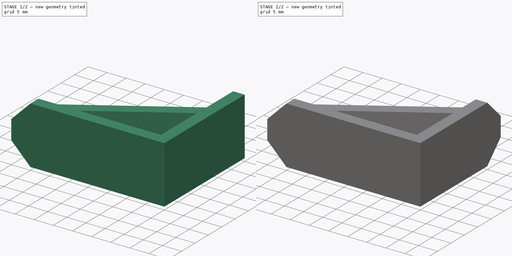
[diagram: build sequence overview — one tinted view per stage of 2, left to right]
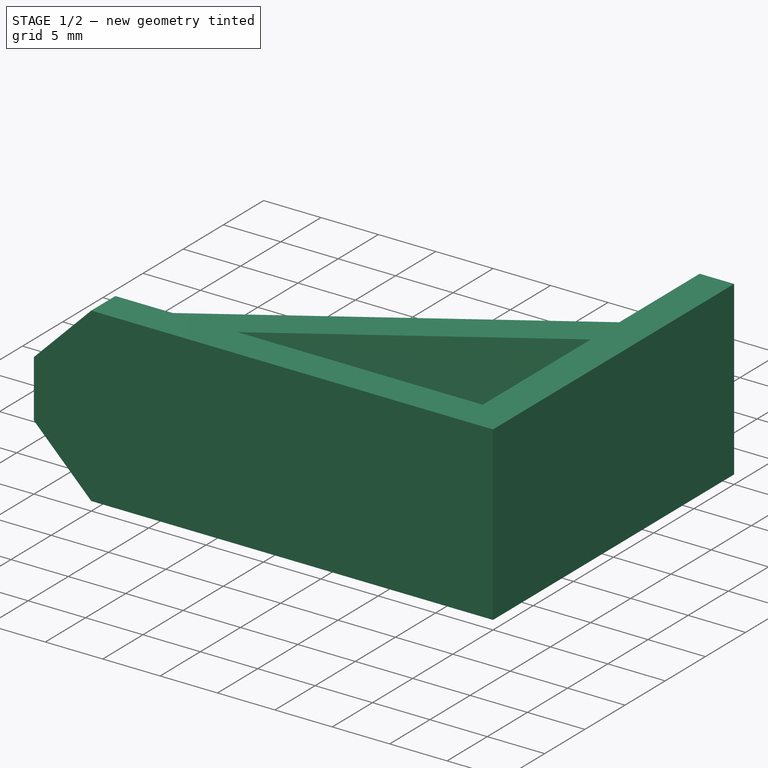
[diagram: stage 1 of 2 — iso view after this stage's code; geometry added in this stage tinted green]
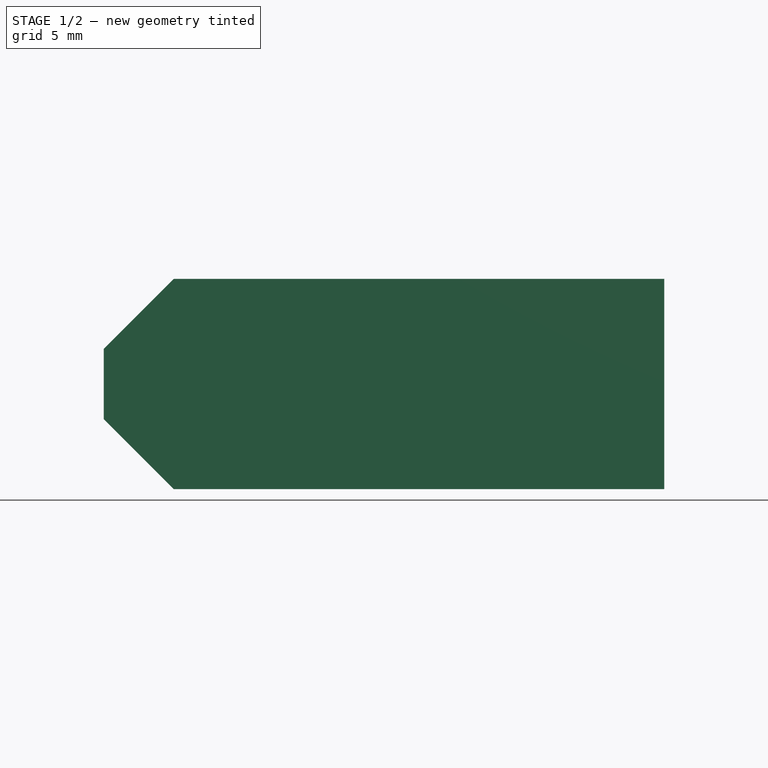
[diagram: stage 1 of 2 — front view after this stage's code; geometry added in this stage tinted green]
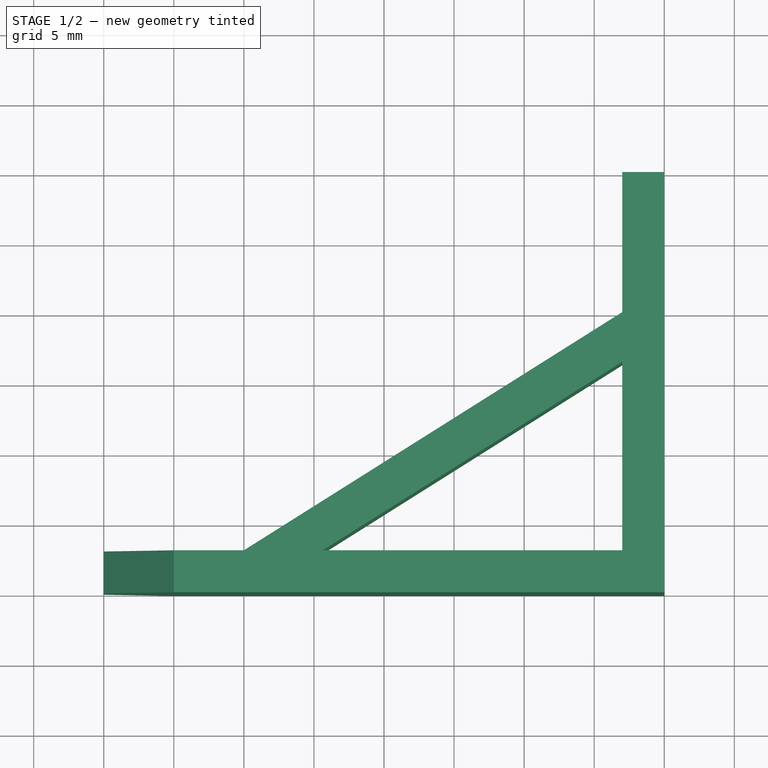
[diagram: stage 1 of 2 — top view after this stage's code; geometry added in this stage tinted green]
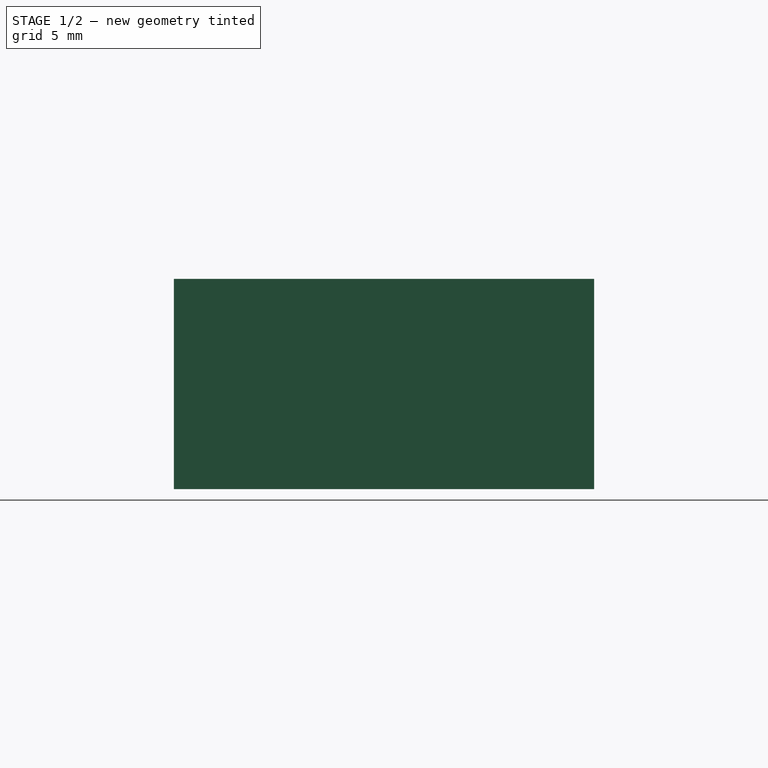
[diagram: stage 1 of 2 — right view after this stage's code; geometry added in this stage tinted green]
FCSTD DOCUMENT  (FreeCAD 0.21R33694 (Git))
Label: speaker foot
License: All rights reserved
LicenseURL: http://en.wikipedia.org/wiki/All_rights_reserved
objects: PartDesign::Chamfer×2, PartDesign::Body×2, Sketcher::SketchObject×1, PartDesign::Pad×1
note: 9 computed .brp shape members not serialized (recipe doc carries the construction recipe); baked Part::Feature solids carry a one-line shape summary decoded from their .brp

FEATURE [Sketcher::SketchObject] Sketch
  FullyConstrained = false
  MapMode = 5
  Support = -> [XY_Plane]
  sketch-geometry (13):
    g0: LineSegment StartX=0 StartY=0 StartZ=0 EndX=-40 EndY=0 EndZ=0
    g1: LineSegment StartX=-40 StartY=0 StartZ=0 EndX=-40 EndY=3 EndZ=0
    g2: LineSegment StartX=-3 StartY=30 StartZ=0 EndX=0 EndY=30 EndZ=0
    g3: LineSegment StartX=0 StartY=30 StartZ=0 EndX=0 EndY=0 EndZ=0
    g4: LineSegment StartX=-40 StartY=3 StartZ=0 EndX=-30 EndY=3 EndZ=0
    g5: LineSegment StartX=-30 StartY=3 StartZ=0 EndX=-3 EndY=20 EndZ=0
    g6: LineSegment StartX=-3 StartY=20 StartZ=0 EndX=-3 EndY=30 EndZ=0
    g7: LineSegment StartX=-3 StartY=3 StartZ=0 EndX=-24.3695 EndY=3 EndZ=0
    g8: LineSegment StartX=-24.3695 StartY=3 StartZ=0 EndX=-3 EndY=16.4549 EndZ=0
    g9: LineSegment StartX=-3 StartY=16.4549 StartZ=0 EndX=-3 EndY=3 EndZ=0
    g10: GeomPoint X=-19.365 Y=6.15096 Z=0
    g11: GeomPoint X=-20.9635 Y=8.68966 Z=0
    g12: LineSegment StartX=-19.365 StartY=6.15096 StartZ=0 EndX=-20.9635 EndY=8.68966 EndZ=0
  constraints (34):
    c: Coincident(g0,g-1)
    c: Coincident(g0,g1)
    c: Vertical(g1)
    c: PointOnObject(g2,g-2)
    c: Horizontal(g2)
    c: Coincident(g2,g3)
    c: Coincident(g3,g0)
    c: Horizontal(g0)
    c: Equal(g1,g2)
    c: DistanceX(g0,g0) = 40
    c: DistanceY(g1,g1) = 3
    c: DistanceY(g3,g3) = 30
    c: Coincident(g1,g4)
    c: Horizontal(g4)
    c: Coincident(g4,g5)
    c: Coincident(g5,g6)
    c: Coincident(g6,g2)
    c: Vertical(g6)
    c: Horizontal(g7)
    c: Coincident(g7,g8)
    c: Coincident(g8,g9)
    c: Coincident(g9,g7)
    c: Vertical(g9)
    c: Vertical(g5,g8)
    c: Horizontal(g4,g7)
    c: Parallel(g5,g8)
    c: Equal(g4,g6)
    c: PointOnObject(g10,g8)
    c: PointOnObject(g11,g5)
    c: Coincident(g12,g10)
    c: Coincident(g12,g11)
    c: Perpendicular(g12,g8)
    c: Distance(g12) = 3
    c: DistanceX(g4,g4) = 10
FEATURE [PartDesign::Pad] Pad
  Direction = (0,0,1)
  Length = 15
  Length2 = 10
  Profile = -> Sketch
  ReferenceAxis = -> Sketch [N_Axis]
  Type = 0
FEATURE [PartDesign::Chamfer] Chamfer
  Angle = 45
  Base = -> Pad [Edge6,Edge7]
  BaseFeature = -> Pad
  ChamferType = 0
  FlipDirection = false
  Size = 5
  Size2 = 1
  SupportTransform = false
  UseAllEdges = false
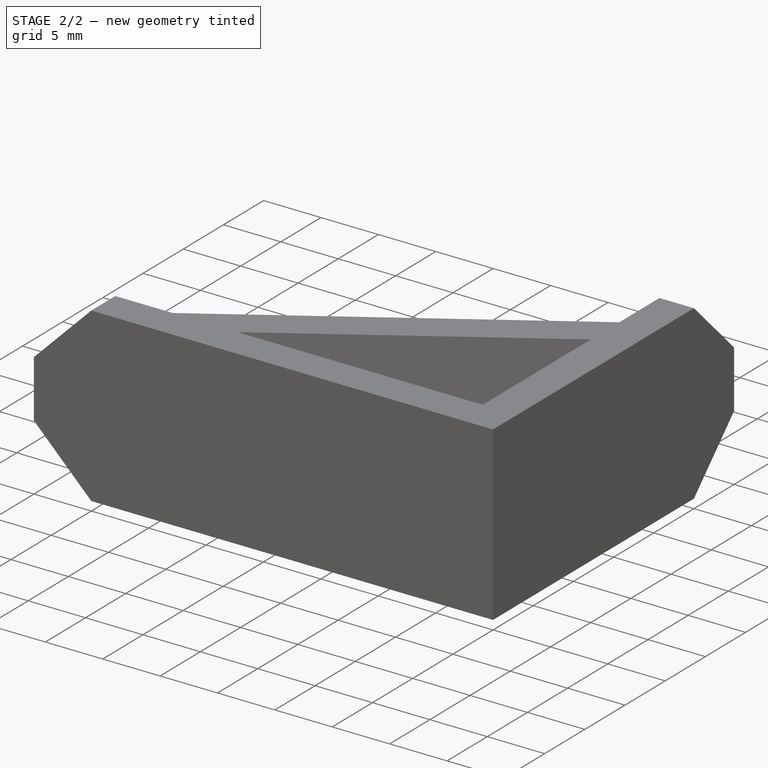
[diagram: stage 2 of 2 — iso view after this stage's code; geometry added in this stage tinted green]
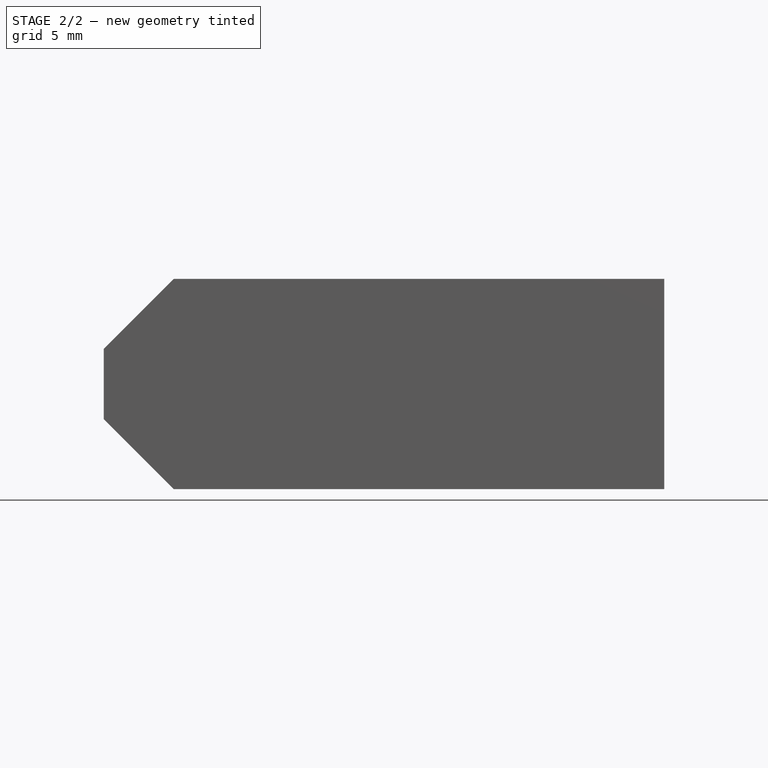
[diagram: stage 2 of 2 — front view after this stage's code; geometry added in this stage tinted green]
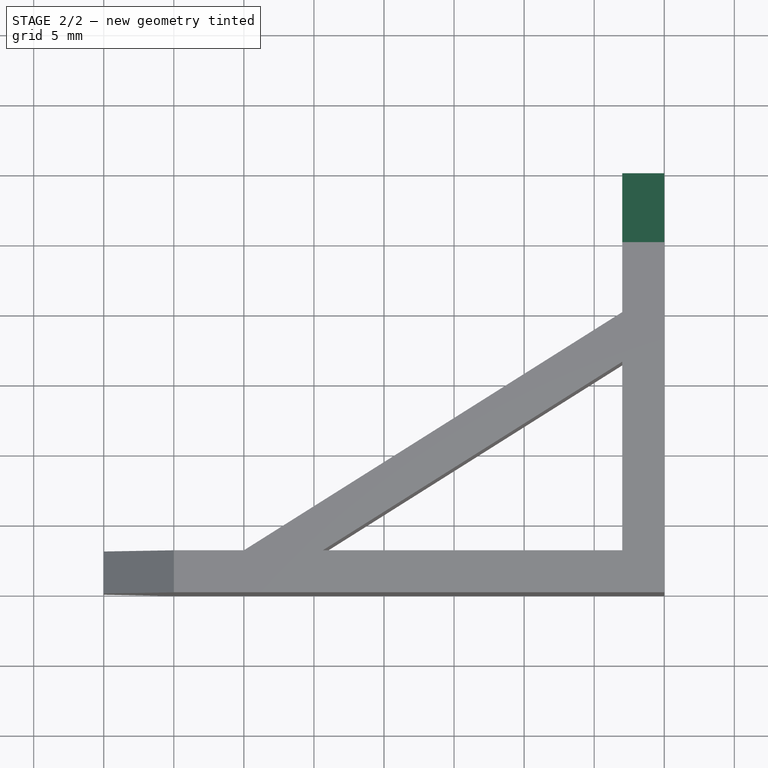
[diagram: stage 2 of 2 — top view after this stage's code; geometry added in this stage tinted green]
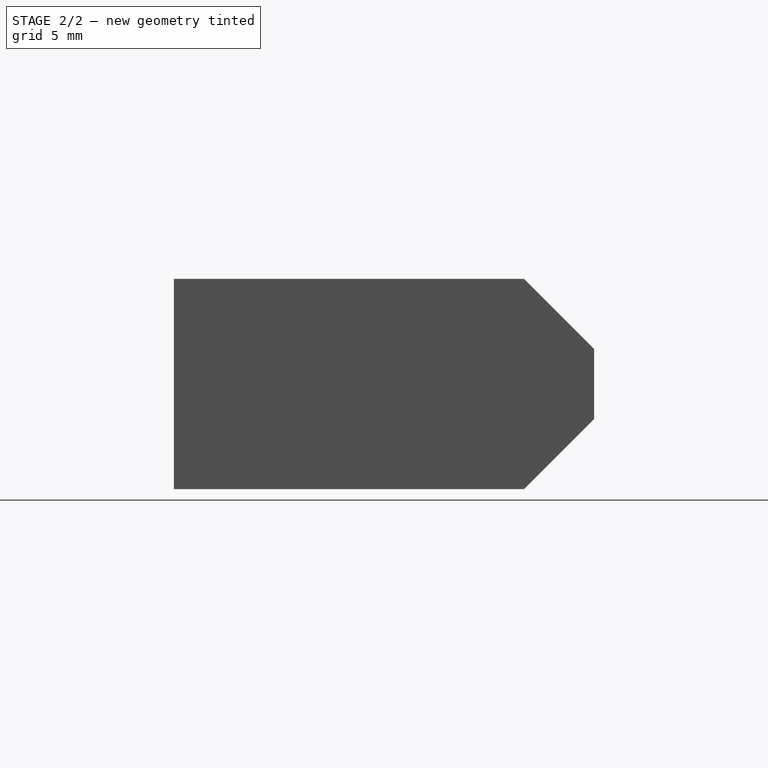
[diagram: stage 2 of 2 — right view after this stage's code; geometry added in this stage tinted green]
FEATURE [PartDesign::Chamfer] Chamfer001
  Angle = 45
  Base = -> Chamfer [Edge16,Edge24]
  BaseFeature = -> Chamfer
  ChamferType = 0
  FlipDirection = false
  Size = 5
  Size2 = 1
  SupportTransform = false
  UseAllEdges = false
FEATURE [PartDesign::Body] Body
  Group = -> [Sketch,Pad,Chamfer,Chamfer001]
  Origin = -> Origin
  Tip = -> Chamfer001
FEATURE [PartDesign::Body] Body001
  Origin = -> Origin001
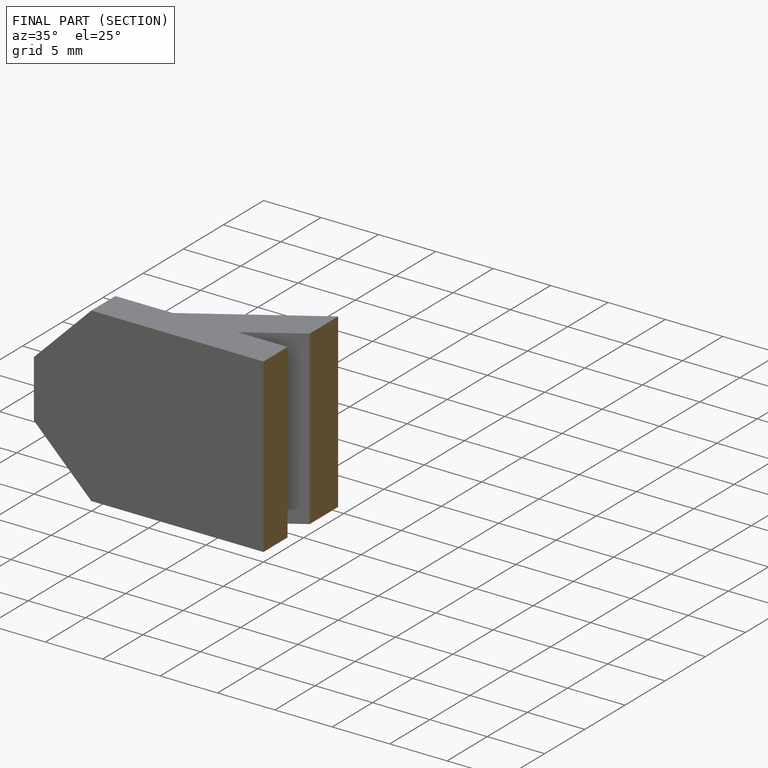
[diagram: finished part — half-section view (interior)]
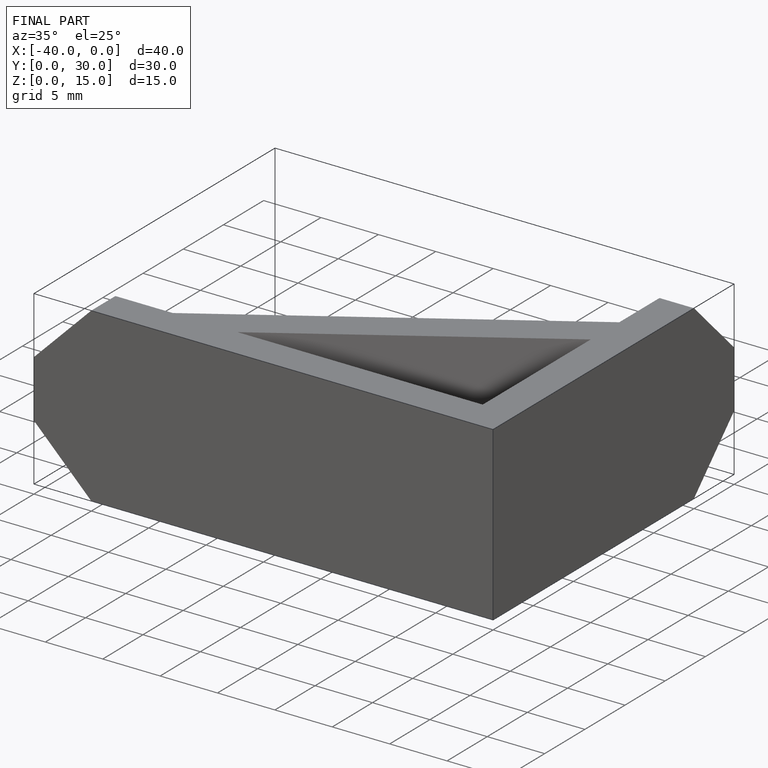
[diagram: finished part — iso view with bounding-box wireframe]
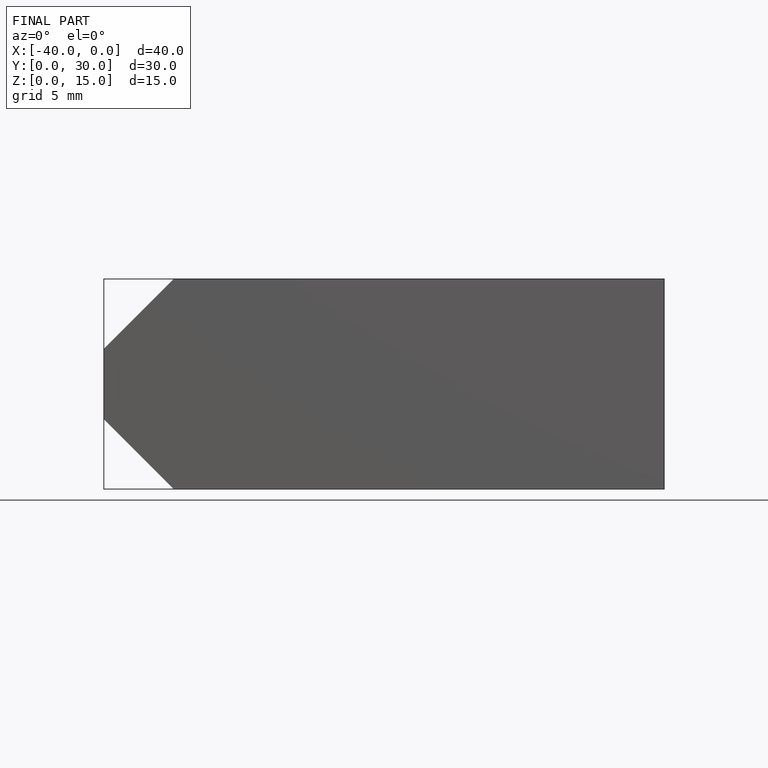
[diagram: finished part — front view with bounding-box wireframe]
